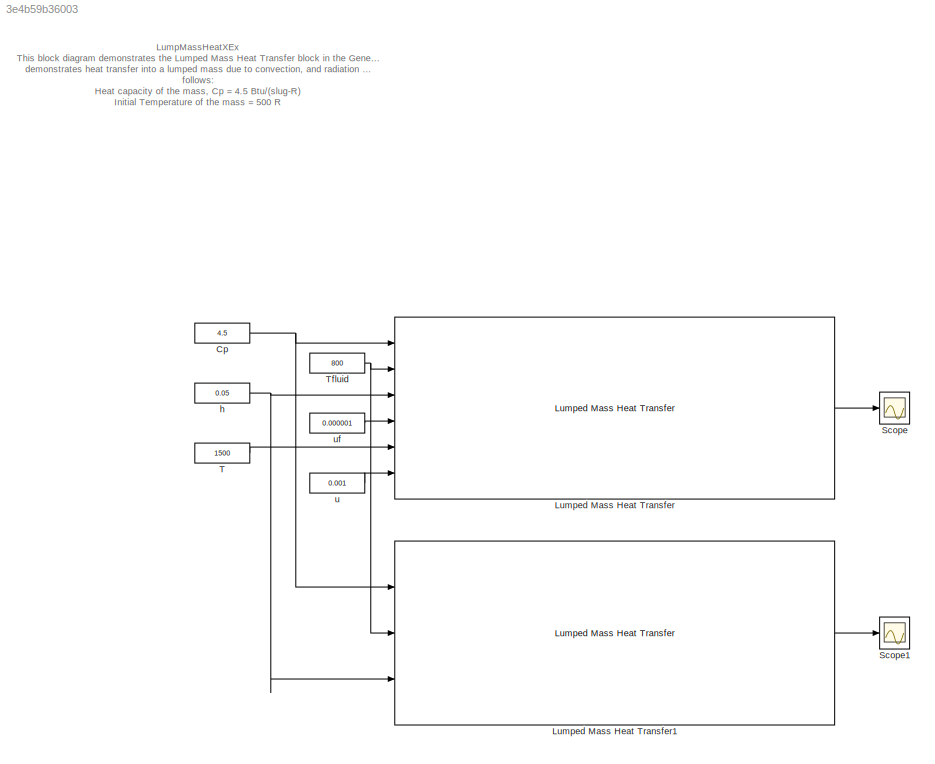
MODEL slx_3e4b59b36003
KIND model
CONFIG AbsTol = auto
CONFIG FixedStep = auto
CONFIG MaxStep = auto
CONFIG MinStep = auto
CONFIG RelTol = 1e-3
CONFIG SampleTimeConstraint = Unconstrained
CONFIG Solver = ode45
CONFIG SolverMode = Auto
CONFIG SolverName = ode45
CONFIG StartTime = 0.0
CONFIG StopTime = 500
BLOCK [Constant] Cp
  Value = 4.5
BLOCK [Reference] Lumped Mass Heat Transfer  REF=lib_GenHeatX_LumpedMassHeatX/Lumped Mass Heat Transfer
  Aconv_M = 0.01
  Arad_M = 0.01
  Ports = [6, 1]
  SourceBlock = lib_GenHeatX_LumpedMassHeatX/Lumped Mass Heat Transfer
  SourceType = TSAT: Lumped Mass Heat Transfer Block
  Tmass0_M = 500
  conv_M = on
  m_M = 0.25/32.174
  radf_M = on
  rads_M = on
BLOCK [Reference] Lumped Mass Heat Transfer1  REF=lib_GenHeatX_LumpedMassHeatX/Lumped Mass Heat Transfer
  Aconv_M = 0.01
  Arad_M = 0.01
  Ports = [3, 1]
  SourceBlock = lib_GenHeatX_LumpedMassHeatX/Lumped Mass Heat Transfer
  SourceType = TSAT: Lumped Mass Heat Transfer Block
  Tmass0_M = 500
  conv_M = on
  m_M = 0.25/32.174
  radf_M = off
  rads_M = off
BLOCK [Scope] Scope
  Floating = off
  NumInputPorts = 1
  Ports = [1]
  ZoomMode = yonly
BLOCK [Scope] Scope1
  Floating = off
  NumInputPorts = 1
  Ports = [1]
  SaveName = ScopeData1
  ZoomMode = yonly
BLOCK [Constant] T
  Value = 1500
BLOCK [Constant] Tfluid
  Value = 800
BLOCK [Constant] h
  Value = 0.05
BLOCK [Constant] u
  Value = 0.001
BLOCK [Constant] uf
  Value = 0.000001
ANNOTATION (root): LumpMassHeatXEx This block diagram demonstrates the Lumped Mass Heat Transfer block in the General Heat Transfer Library of TSAT. The top block demonstrates heat transfer into a lumped mass due to convection, and radiation with the fluid and a distant object. Variables are as follows: Heat capacity of the mass, Cp = 4.5 Btu/(slug-R) Initial Temperature of the mass = 500 R Mass of the object, m = 0...<+431ch>
NET Cp:1 -> Lumped Mass Heat Transfer1:1, Lumped Mass Heat Transfer:1
LINE Lumped Mass Heat Transfer1:1 -> Scope1:1
LINE Lumped Mass Heat Transfer:1 -> Scope:1
LINE T:1 -> Lumped Mass Heat Transfer:5
NET Tfluid:1 -> Lumped Mass Heat Transfer1:2, Lumped Mass Heat Transfer:2
NET h:1 -> Lumped Mass Heat Transfer1:3, Lumped Mass Heat Transfer:3
LINE u:1 -> Lumped Mass Heat Transfer:6
LINE uf:1 -> Lumped Mass Heat Transfer:4
note: NET lines group one-source signal fan-out (src -> all destinations, sorted); 1:1 wires keep LINE
